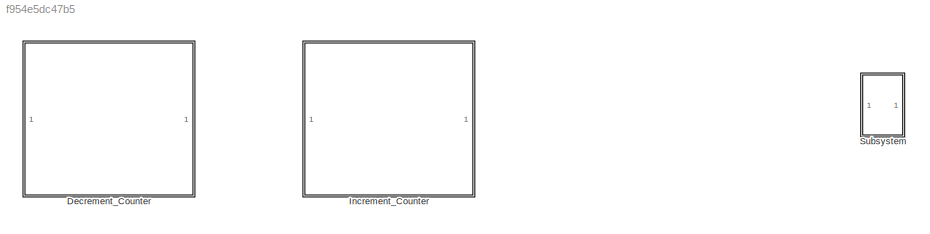
MODEL slx_f954e5dc47b5
KIND model
CONFIG AbsTol = auto
CONFIG EnableMultiTasking = off
CONFIG FixedStep = Auto
CONFIG MaxStep = auto
CONFIG MinStep = auto
CONFIG RelTol = 1e-3
CONFIG SampleTimeConstraint = Unconstrained
CONFIG SolverName = FixedStepDiscrete
CONFIG StartTime = 0.0
CONFIG StopTime = 1
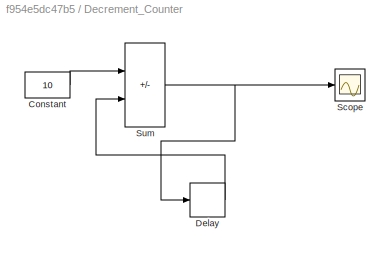
BLOCK [SubSystem] Decrement_Counter
BLOCK [Constant] Decrement_Counter/Constant
  Value = 10
BLOCK [Delay] Decrement_Counter/Delay
  InputPortMap = u0
BLOCK [Scope] Decrement_Counter/Scope
  ActiveDisplayYMaximum = 302.49999999999994
  ActiveDisplayYMinimum = -2822.5
  Floating = off
  GraphicalSettings = {"AxesScalingProperties":{"AlignXAxis":"Center","AlignYAxis":"Center","AutoScaleXAxisLimits":false,"AxesScaling":"Manual","AxesScalingNumUpdates":10,"ExpandOnly":true,"ScaleAxesLimitsAtStop":false,"XAxisDataRange":100,"YAxisDataRange":80},"DisplayProperties":{"ColorOrder":["auto","auto","auto","auto","auto","auto","auto","auto","auto","auto","auto","auto","auto","auto","auto","auto","auto","auto",...<+1947ch>
  MultipleDisplayCache = [{"MaxYLimMag":2822.5,"MaxYLimReal":302.49999999999994,"MinYLimMag":0,"MinYLimReal":-2822.5,"PlotAsMagnitudePhase":false,"ShowGrid":true,"ShowLegend":false,"Title":"%<SignalLabel>","YLabel":""}]
  NumInputPorts = 1
  ScopeFrameLocation = window
  WasSavedAsWebScope = on
  WindowPosition = [488.000000,274.000000,620.000000,368.000000,]
BLOCK [Sum] Decrement_Counter/Sum
  IconShape = rectangular
  Inputs = |-+
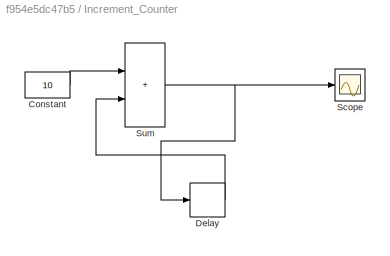
BLOCK [SubSystem] Increment_Counter
BLOCK [Constant] Increment_Counter/Constant
  Value = 10
BLOCK [Delay] Increment_Counter/Delay
  InputPortMap = u0
BLOCK [Scope] Increment_Counter/Scope
  ActiveDisplayYMaximum = 302.49999999999994
  ActiveDisplayYMinimum = -2822.5
  Floating = off
  GraphicalSettings = {"Style":{"BackgroundColor":[0.12941176470588237,0.12941176470588237,0.12941176470588237],"AxesColor":[0.07058823529411765,0.07058823529411765,0.07058823529411765],"LabelsColor":[0.8509803921568627,0.8509803921568627,0.8509803921568627],"PreserveColors":false,"Visible":[true],"LineStyle":["-"],"LineWidth":[1.5],"BarWidth":[0.9],"LineColor":["auto"],"LineFaceAlpha":[1],"LineEdgeAlpha":[1],"Marker":...<+1940ch>
  MultipleDisplayCache = [{"MaxYLimMag":2822.5,"MaxYLimReal":302.49999999999994,"MinYLimMag":0,"MinYLimReal":-2822.5,"PlotAsMagnitudePhase":false,"ShowGrid":true,"ShowLegend":false,"Title":"%<SignalLabel>","YLabel":""}]
  NumInputPorts = 1
  ScopeFrameLocation = window
  WasSavedAsWebScope = on
  WindowPosition = [488.000000,274.000000,620.000000,368.000000,]
BLOCK [Sum] Increment_Counter/Sum
  IconShape = rectangular
  Inputs = |++
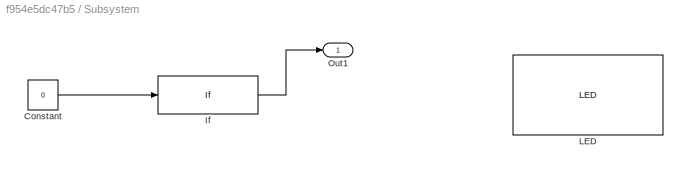
BLOCK [SubSystem] Subsystem
BLOCK [Constant] Subsystem/Constant
  Value = 0
BLOCK [If] Subsystem/If
  ShowElse = off
BLOCK [Reference] Subsystem/LED  REF=hwlogiciolib/LED
  SourceBlock = hwlogiciolib/LED
  SourceType = LED
BLOCK [Outport] Subsystem/Out1
LINE Decrement_Counter/Constant:1 -> Decrement_Counter/Sum:1
LINE Decrement_Counter/Delay:1 -> Decrement_Counter/Sum:2
NET Decrement_Counter/Sum:1 -> Decrement_Counter/Delay:1, Decrement_Counter/Scope:1
LINE Increment_Counter/Constant:1 -> Increment_Counter/Sum:1
LINE Increment_Counter/Delay:1 -> Increment_Counter/Sum:2
NET Increment_Counter/Sum:1 -> Increment_Counter/Delay:1, Increment_Counter/Scope:1
LINE Subsystem/Constant:1 -> Subsystem/If:1
LINE Subsystem/If:1 -> Subsystem/Out1:1
note: NET lines group one-source signal fan-out (src -> all destinations, sorted); 1:1 wires keep LINE
